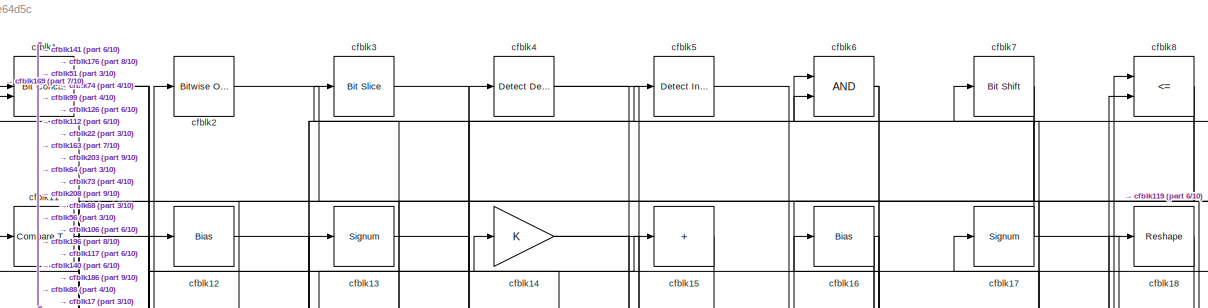
[diagram: root canvas - part 1/10, full width, top band]
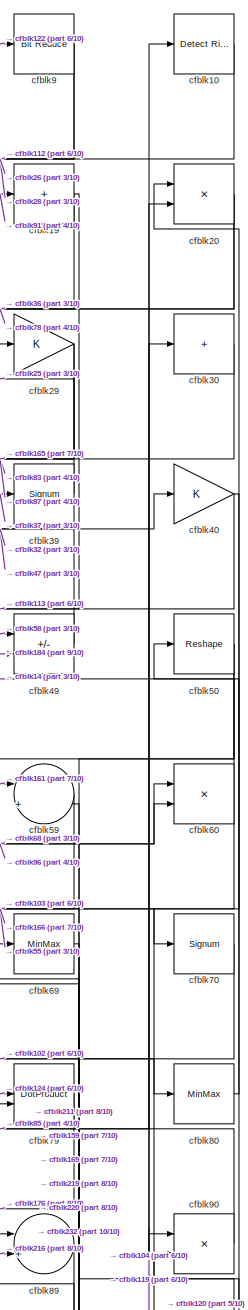
[diagram: root canvas - part 2/10, top right region]
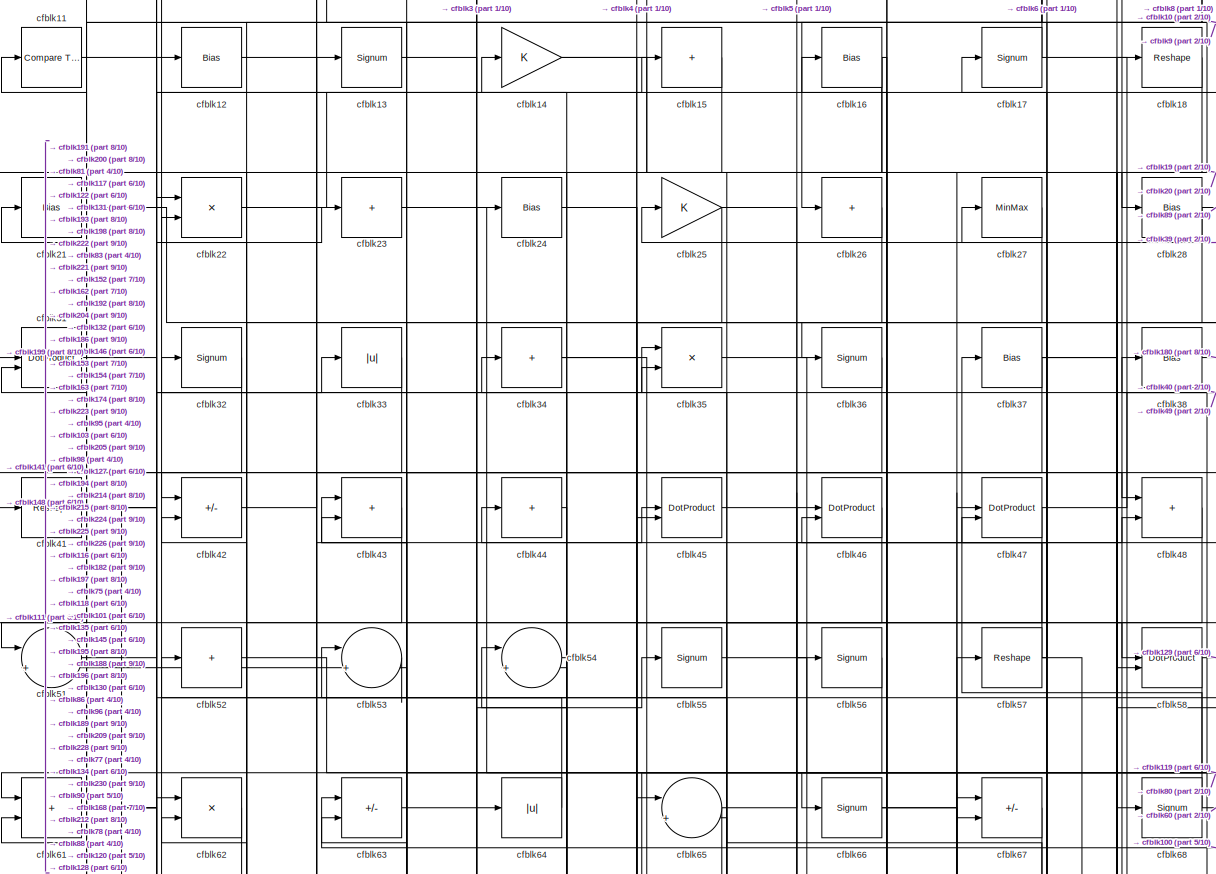
[diagram: root canvas - part 3/10, full width, top band]
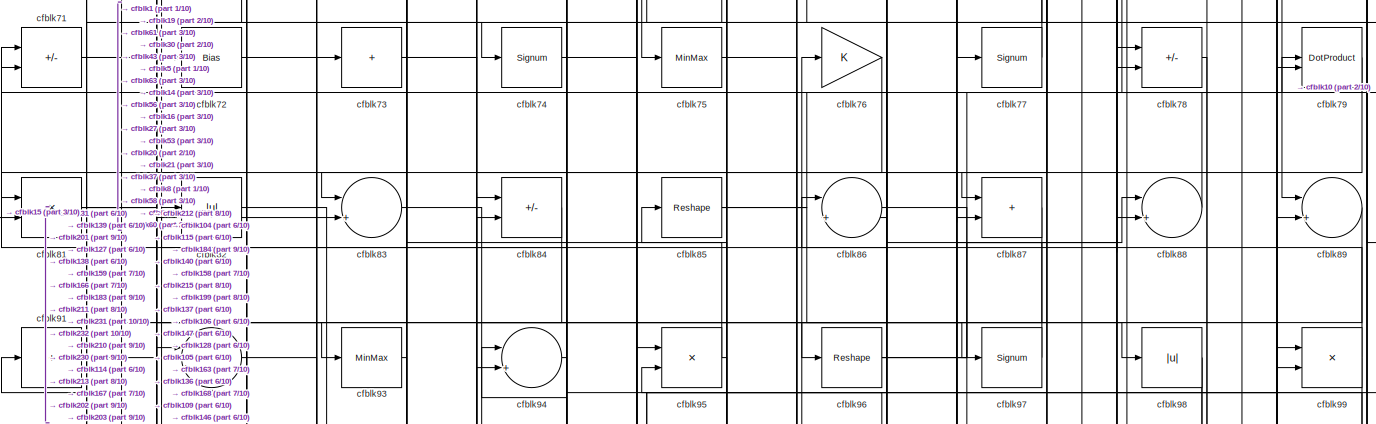
[diagram: root canvas - part 4/10, full width, middle band]
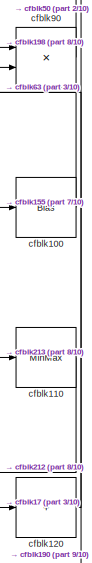
[diagram: root canvas - part 5/10, middle right region]
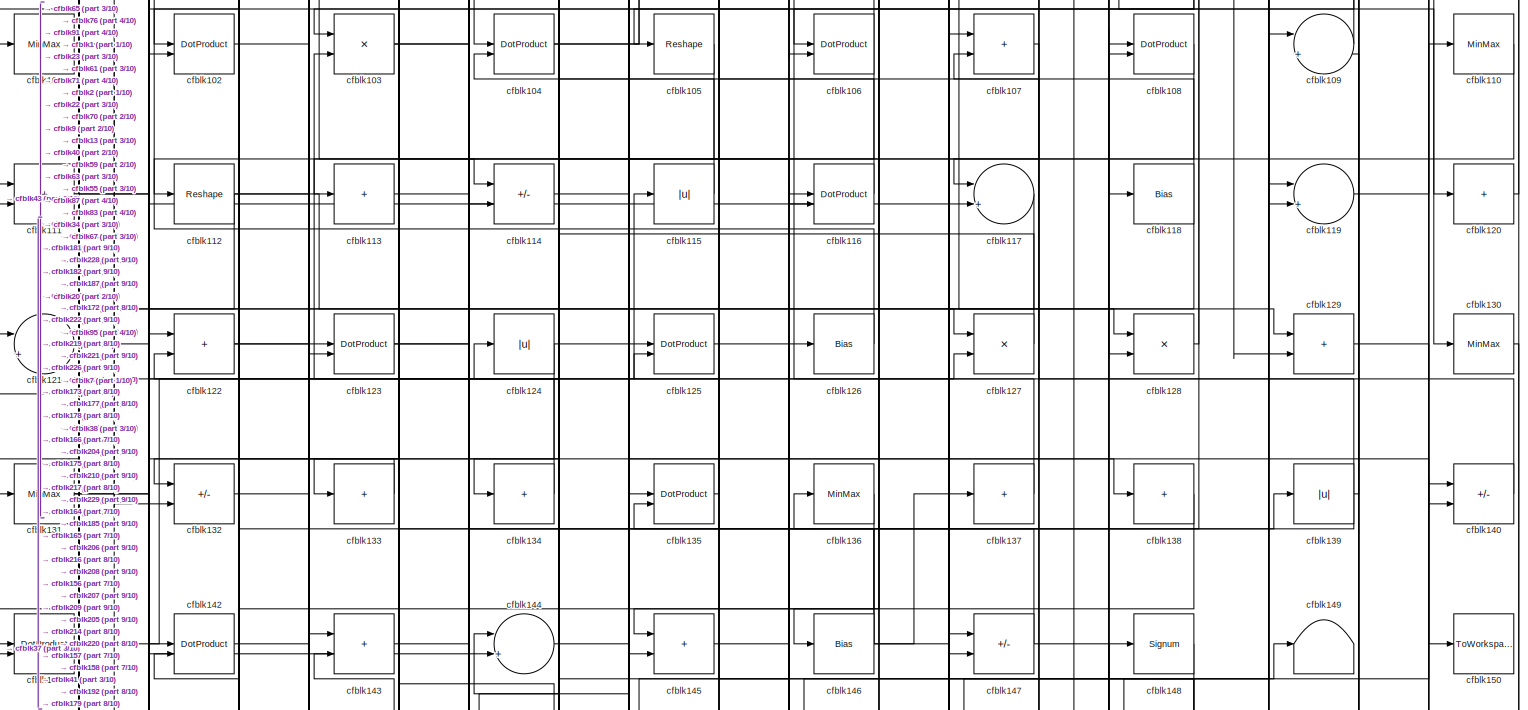
[diagram: root canvas - part 6/10, full width, middle band]
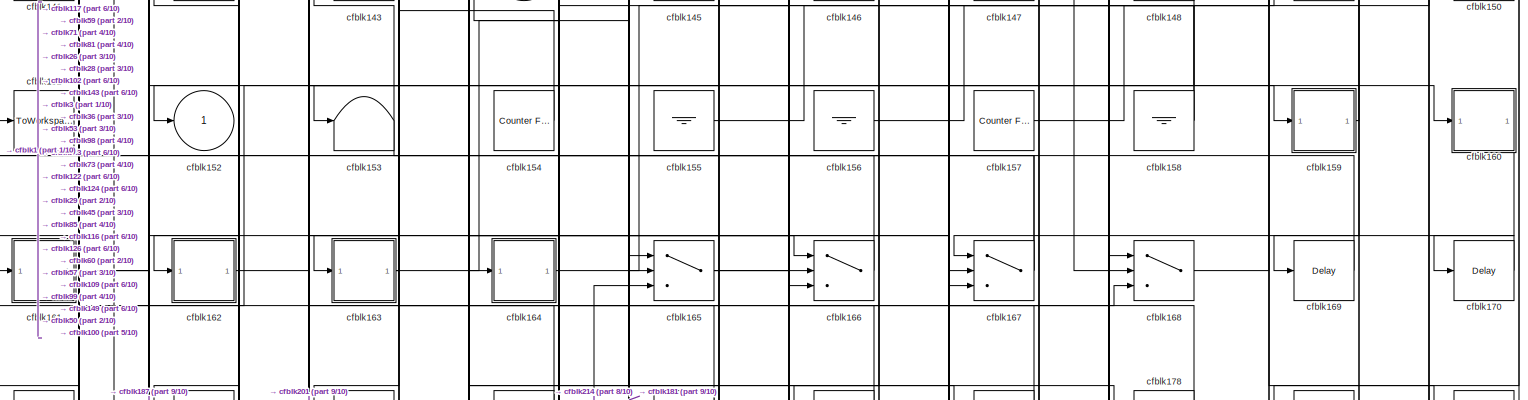
[diagram: root canvas - part 7/10, full width, bottom band]
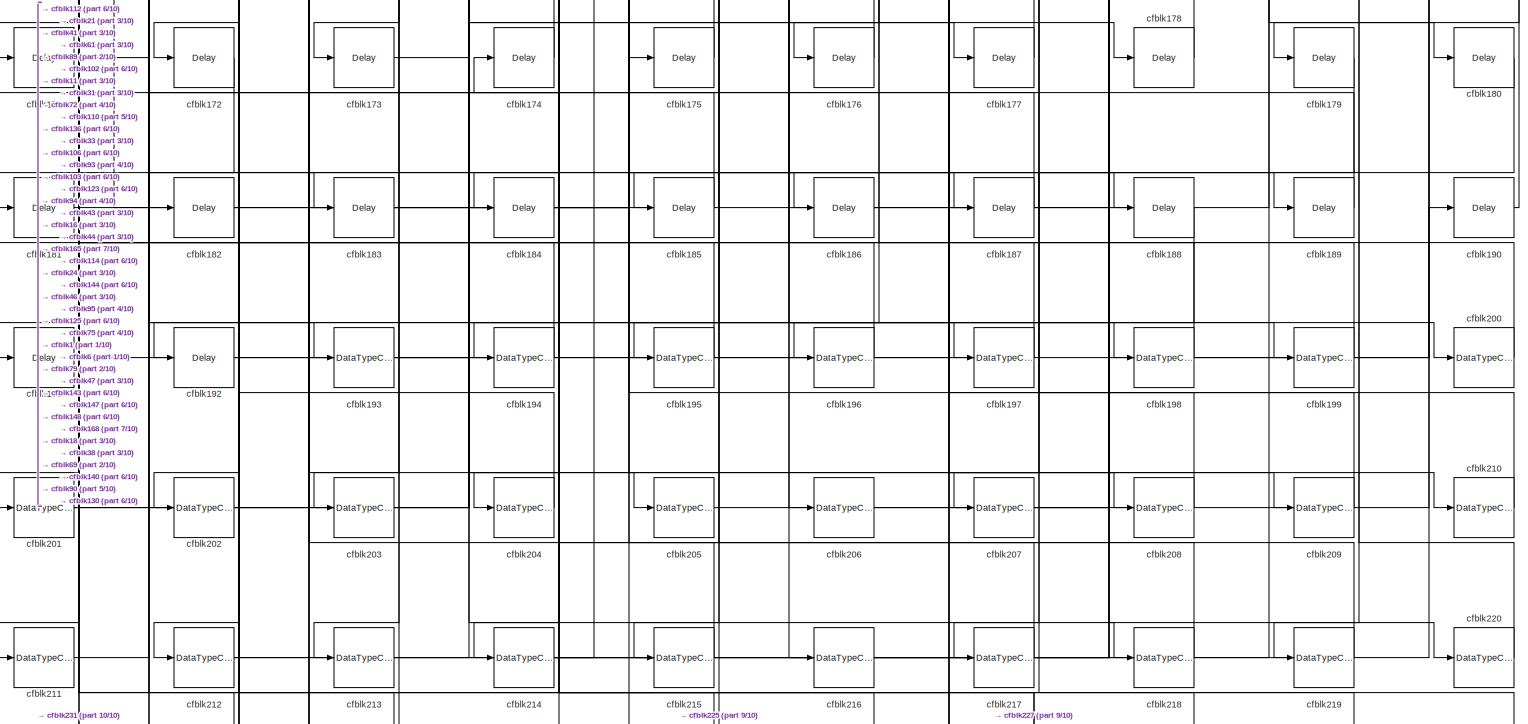
[diagram: root canvas - part 8/10, full width, bottom band]
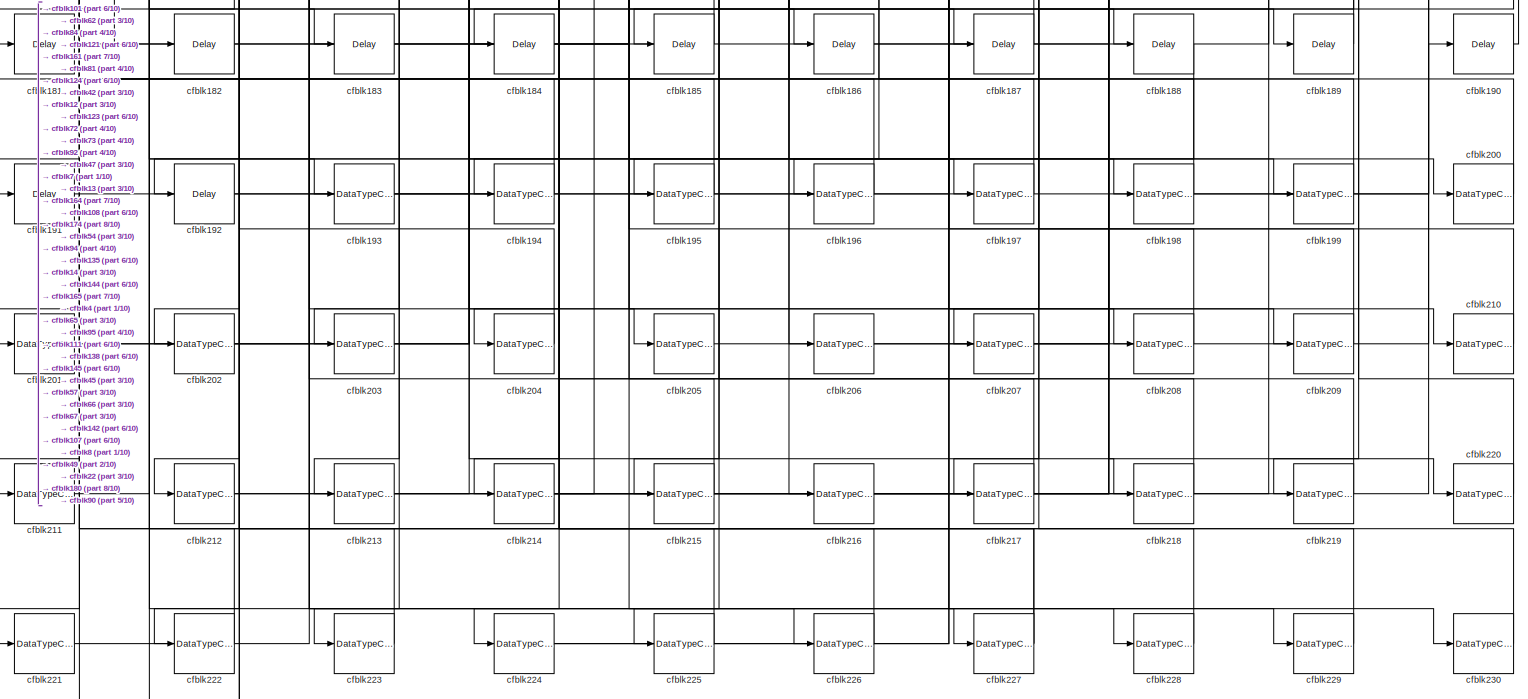
[diagram: root canvas - part 9/10, full width, bottom band]
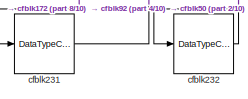
[diagram: root canvas - part 10/10, bottom left region]
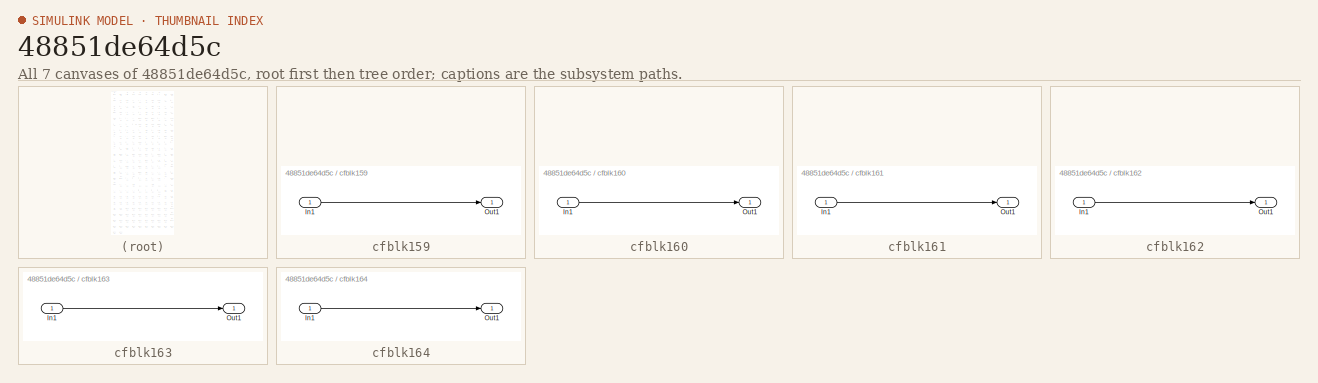
[diagram: thumbnail index - all 7 canvases of the model, root first then tree order]
MODEL slx_48851de64d5c
KIND model
CONFIG AbsTol = auto
CONFIG EnableMultiTasking = off
CONFIG FixedStep = auto
CONFIG MaxStep = auto
CONFIG MinStep = auto
CONFIG RelTol = 1e-3
CONFIG SampleTimeConstraint = Unconstrained
CONFIG SolverName = VariableStepAuto
CONFIG StartTime = 0.0
CONFIG StopTime = 10.0
BLOCK [Reference] cfblk1  REF=hdlsllib/Logic and Bit
Operations/Bit Concat
  SourceBlock = hdlsllib/Logic and Bit\nOperations/Bit Concat
  SourceType = Bit Concat
BLOCK [Reference] cfblk10  REF=hdlsllib/Logic and Bit
Operations/Detect Rise
Positive
  SourceBlock = hdlsllib/Logic and Bit\nOperations/Detect Rise\nPositive
  SourceType = Detect Rise Positive
BLOCK [Bias] cfblk100
  Bias = 0.0
  SaturateOnIntegerOverflow = off
BLOCK [MinMax] cfblk101
BLOCK [DotProduct] cfblk102
  OutDataTypeStr = Inherit: Inherit via internal rule
BLOCK [Product] cfblk103
  Inputs = */
  RndMeth = Zero
  SaturateOnIntegerOverflow = on
BLOCK [DotProduct] cfblk104
  OutDataTypeStr = Inherit: Inherit via internal rule
BLOCK [Reshape] cfblk105
BLOCK [DotProduct] cfblk106
  OutDataTypeStr = Inherit: Inherit via internal rule
BLOCK [Sum] cfblk107
  IconShape = rectangular
BLOCK [DotProduct] cfblk108
  OutDataTypeStr = Inherit: Inherit via internal rule
BLOCK [Sum] cfblk109
  Inputs = |++
BLOCK [Reference] cfblk11  REF=hdlsllib/Logic and Bit
Operations/Compare
To Constant
  SourceBlock = hdlsllib/Logic and Bit\nOperations/Compare\nTo Constant
  SourceType = Compare To Constant
BLOCK [MinMax] cfblk110
BLOCK [Sum] cfblk111
  IconShape = rectangular
BLOCK [Reshape] cfblk112
BLOCK [Sum] cfblk113
  IconShape = rectangular
  Inputs = +
BLOCK [Sum] cfblk114
  IconShape = rectangular
  Inputs = +-
BLOCK [Abs] cfblk115
  SaturateOnIntegerOverflow = off
BLOCK [DotProduct] cfblk116
  OutDataTypeStr = Inherit: Inherit via internal rule
BLOCK [Sum] cfblk117
  Inputs = |++
BLOCK [Bias] cfblk118
  Bias = 0.0
  SaturateOnIntegerOverflow = off
BLOCK [Sum] cfblk119
  Inputs = |++
BLOCK [Bias] cfblk12
  Bias = 0.0
  SaturateOnIntegerOverflow = off
BLOCK [Sum] cfblk120
  IconShape = rectangular
  Inputs = +
BLOCK [Sum] cfblk121
  Inputs = |++
BLOCK [Sum] cfblk122
  IconShape = rectangular
BLOCK [DotProduct] cfblk123
  OutDataTypeStr = Inherit: Inherit via internal rule
BLOCK [Abs] cfblk124
  SaturateOnIntegerOverflow = off
BLOCK [DotProduct] cfblk125
  OutDataTypeStr = Inherit: Inherit via internal rule
BLOCK [Bias] cfblk126
  Bias = 0.0
  SaturateOnIntegerOverflow = off
BLOCK [Product] cfblk127
  Inputs = */
  RndMeth = Zero
  SaturateOnIntegerOverflow = on
BLOCK [Product] cfblk128
  Inputs = */
  RndMeth = Zero
  SaturateOnIntegerOverflow = on
BLOCK [Sum] cfblk129
  IconShape = rectangular
BLOCK [Signum] cfblk13
BLOCK [MinMax] cfblk130
BLOCK [MinMax] cfblk131
BLOCK [Sum] cfblk132
  IconShape = rectangular
  Inputs = +-
BLOCK [Sum] cfblk133
  IconShape = rectangular
  Inputs = +
BLOCK [Sum] cfblk134
  IconShape = rectangular
  Inputs = +
BLOCK [DotProduct] cfblk135
  OutDataTypeStr = Inherit: Inherit via internal rule
BLOCK [MinMax] cfblk136
BLOCK [Sum] cfblk137
  IconShape = rectangular
  Inputs = +
BLOCK [Sum] cfblk138
  IconShape = rectangular
  Inputs = +
BLOCK [Abs] cfblk139
  SaturateOnIntegerOverflow = off
BLOCK [Gain] cfblk14
BLOCK [Sum] cfblk140
  IconShape = rectangular
  Inputs = +-
BLOCK [DotProduct] cfblk141
  OutDataTypeStr = Inherit: Inherit via internal rule
BLOCK [DotProduct] cfblk142
  OutDataTypeStr = Inherit: Inherit via internal rule
BLOCK [Sum] cfblk143
  IconShape = rectangular
BLOCK [Sum] cfblk144
  Inputs = |++
BLOCK [Sum] cfblk145
  IconShape = rectangular
BLOCK [Bias] cfblk146
  Bias = 0.0
  SaturateOnIntegerOverflow = off
BLOCK [Sum] cfblk147
  IconShape = rectangular
  Inputs = +-
BLOCK [Signum] cfblk148
BLOCK [Terminator] cfblk149
BLOCK [Sum] cfblk15
  IconShape = rectangular
  Inputs = +
BLOCK [ToWorkspace] cfblk150
  MaxDataPoints = inf
  SampleTime = -1
  SaveFormat = Timeseries
  VariableName = simout
BLOCK [ToWorkspace] cfblk151
  MaxDataPoints = inf
  SampleTime = -1
  SaveFormat = Timeseries
  VariableName = simout
BLOCK [Outport] cfblk152
  VectorParamsAs1DForOutWhenUnconnected = off
BLOCK [Terminator] cfblk153
BLOCK [Reference] cfblk154  REF=hdlsllib/Sources/Counter
Free-Running
  SourceBlock = hdlsllib/Sources/Counter\nFree-Running
  SourceType = Counter Free-Running
BLOCK [Ground] cfblk155
BLOCK [Ground] cfblk156
BLOCK [Reference] cfblk157  REF=hdlsllib/Sources/Counter
Free-Running
  SourceBlock = hdlsllib/Sources/Counter\nFree-Running
  SourceType = Counter Free-Running
BLOCK [Ground] cfblk158
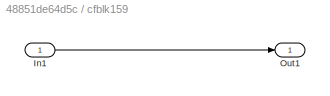
BLOCK [SubSystem] cfblk159
  LibrarySourceBlock = hdlsllib/Ports &\nSubsystems/Subsystem
BLOCK [Inport] cfblk159/In1
BLOCK [Outport] cfblk159/Out1
BLOCK [Bias] cfblk16
  Bias = 0.0
  SaturateOnIntegerOverflow = off
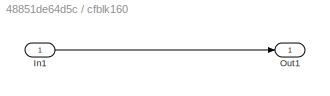
BLOCK [SubSystem] cfblk160
  LibrarySourceBlock = hdlsllib/Ports &\nSubsystems/Subsystem
BLOCK [Inport] cfblk160/In1
BLOCK [Outport] cfblk160/Out1
BLOCK [SubSystem] cfblk161
  LibrarySourceBlock = hdlsllib/Ports &\nSubsystems/Subsystem
BLOCK [Inport] cfblk161/In1
BLOCK [Outport] cfblk161/Out1
BLOCK [SubSystem] cfblk162
  LibrarySourceBlock = hdlsllib/Ports &\nSubsystems/Subsystem
BLOCK [Inport] cfblk162/In1
BLOCK [Outport] cfblk162/Out1
BLOCK [SubSystem] cfblk163
  LibrarySourceBlock = hdlsllib/Ports &\nSubsystems/Subsystem
BLOCK [Inport] cfblk163/In1
BLOCK [Outport] cfblk163/Out1
BLOCK [SubSystem] cfblk164
  LibrarySourceBlock = hdlsllib/Ports &\nSubsystems/Subsystem
BLOCK [Inport] cfblk164/In1
BLOCK [Outport] cfblk164/Out1
BLOCK [Switch] cfblk165
  InputSameDT = off
  SaturateOnIntegerOverflow = off
BLOCK [Switch] cfblk166
  InputSameDT = off
  SaturateOnIntegerOverflow = off
BLOCK [Switch] cfblk167
  InputSameDT = off
  SaturateOnIntegerOverflow = off
BLOCK [Switch] cfblk168
  InputSameDT = off
  SaturateOnIntegerOverflow = off
BLOCK [Delay] cfblk169
  InputPortMap = u0
  SampleTime = 1
BLOCK [Signum] cfblk17
BLOCK [Delay] cfblk170
  InputPortMap = u0
  SampleTime = 1
BLOCK [Delay] cfblk171
  InputPortMap = u0
  SampleTime = 1
BLOCK [Delay] cfblk172
  InputPortMap = u0
  SampleTime = 1
BLOCK [Delay] cfblk173
  InputPortMap = u0
  SampleTime = 1
BLOCK [Delay] cfblk174
  InputPortMap = u0
  SampleTime = 1
BLOCK [Delay] cfblk175
  InputPortMap = u0
  SampleTime = 1
BLOCK [Delay] cfblk176
  InputPortMap = u0
  SampleTime = 1
BLOCK [Delay] cfblk177
  InputPortMap = u0
  SampleTime = 1
BLOCK [Delay] cfblk178
  InputPortMap = u0
  SampleTime = 1
BLOCK [Delay] cfblk179
  InputPortMap = u0
  SampleTime = 1
BLOCK [Reshape] cfblk18
BLOCK [Delay] cfblk180
  InputPortMap = u0
  SampleTime = 1
BLOCK [Delay] cfblk181
  InputPortMap = u0
  SampleTime = 1
BLOCK [Delay] cfblk182
  InputPortMap = u0
  SampleTime = 1
BLOCK [Delay] cfblk183
  InputPortMap = u0
  SampleTime = 1
BLOCK [Delay] cfblk184
  InputPortMap = u0
  SampleTime = 1
BLOCK [Delay] cfblk185
  InputPortMap = u0
  SampleTime = 1
BLOCK [Delay] cfblk186
  InputPortMap = u0
  SampleTime = 1
BLOCK [Delay] cfblk187
  InputPortMap = u0
  SampleTime = 1
BLOCK [Delay] cfblk188
  InputPortMap = u0
  SampleTime = 1
BLOCK [Delay] cfblk189
  InputPortMap = u0
  SampleTime = 1
BLOCK [Sum] cfblk19
  IconShape = rectangular
  Inputs = +
BLOCK [Delay] cfblk190
  InputPortMap = u0
  SampleTime = 1
BLOCK [Delay] cfblk191
  InputPortMap = u0
  SampleTime = 1
BLOCK [Delay] cfblk192
  InputPortMap = u0
  SampleTime = 1
BLOCK [DataTypeConversion] cfblk193
  OutDataTypeStr = uint8
  RndMeth = Floor
  SaturateOnIntegerOverflow = off
BLOCK [DataTypeConversion] cfblk194
  OutDataTypeStr = uint8
  RndMeth = Floor
  SaturateOnIntegerOverflow = off
BLOCK [DataTypeConversion] cfblk195
  OutDataTypeStr = uint8
  RndMeth = Floor
  SaturateOnIntegerOverflow = off
BLOCK [DataTypeConversion] cfblk196
  OutDataTypeStr = uint8
  RndMeth = Floor
  SaturateOnIntegerOverflow = off
BLOCK [DataTypeConversion] cfblk197
  OutDataTypeStr = uint8
  RndMeth = Floor
  SaturateOnIntegerOverflow = off
BLOCK [DataTypeConversion] cfblk198
  RndMeth = Floor
  SaturateOnIntegerOverflow = off
BLOCK [DataTypeConversion] cfblk199
  OutDataTypeStr = uint8
  RndMeth = Floor
  SaturateOnIntegerOverflow = off
BLOCK [Reference] cfblk2  REF=simulink/Logic and Bit
Operations/Bitwise
Operator
  LibrarySourceBlock = hdlsllib/Logic and Bit\nOperations/Bitwise\nOperator
  SourceBlock = simulink/Logic and Bit\nOperations/Bitwise\nOperator
  SourceType = Bitwise Operator
BLOCK [Product] cfblk20
  Inputs = */
  RndMeth = Zero
  SaturateOnIntegerOverflow = on
BLOCK [DataTypeConversion] cfblk200
  OutDataTypeStr = uint8
  RndMeth = Floor
  SaturateOnIntegerOverflow = off
BLOCK [DataTypeConversion] cfblk201
  RndMeth = Floor
  SaturateOnIntegerOverflow = off
BLOCK [DataTypeConversion] cfblk202
  OutDataTypeStr = uint8
  RndMeth = Floor
  SaturateOnIntegerOverflow = off
BLOCK [DataTypeConversion] cfblk203
  OutDataTypeStr = uint8
  RndMeth = Floor
  SaturateOnIntegerOverflow = off
BLOCK [DataTypeConversion] cfblk204
  OutDataTypeStr = uint8
  RndMeth = Floor
  SaturateOnIntegerOverflow = off
BLOCK [DataTypeConversion] cfblk205
  OutDataTypeStr = uint8
  RndMeth = Floor
  SaturateOnIntegerOverflow = off
BLOCK [DataTypeConversion] cfblk206
  OutDataTypeStr = uint8
  RndMeth = Floor
  SaturateOnIntegerOverflow = off
BLOCK [DataTypeConversion] cfblk207
  OutDataTypeStr = uint8
  RndMeth = Floor
  SaturateOnIntegerOverflow = off
BLOCK [DataTypeConversion] cfblk208
  OutDataTypeStr = uint8
  RndMeth = Floor
  SaturateOnIntegerOverflow = off
BLOCK [DataTypeConversion] cfblk209
  OutDataTypeStr = uint8
  RndMeth = Floor
  SaturateOnIntegerOverflow = off
BLOCK [Bias] cfblk21
  Bias = 0.0
  SaturateOnIntegerOverflow = off
BLOCK [DataTypeConversion] cfblk210
  OutDataTypeStr = uint8
  RndMeth = Floor
  SaturateOnIntegerOverflow = off
BLOCK [DataTypeConversion] cfblk211
  OutDataTypeStr = uint8
  RndMeth = Floor
  SaturateOnIntegerOverflow = off
BLOCK [DataTypeConversion] cfblk212
  RndMeth = Floor
  SaturateOnIntegerOverflow = off
BLOCK [DataTypeConversion] cfblk213
  OutDataTypeStr = uint8
  RndMeth = Floor
  SaturateOnIntegerOverflow = off
BLOCK [DataTypeConversion] cfblk214
  RndMeth = Floor
  SaturateOnIntegerOverflow = off
BLOCK [DataTypeConversion] cfblk215
  OutDataTypeStr = uint8
  RndMeth = Floor
  SaturateOnIntegerOverflow = off
BLOCK [DataTypeConversion] cfblk216
  OutDataTypeStr = uint8
  RndMeth = Floor
  SaturateOnIntegerOverflow = off
BLOCK [DataTypeConversion] cfblk217
  OutDataTypeStr = uint8
  RndMeth = Floor
  SaturateOnIntegerOverflow = off
BLOCK [DataTypeConversion] cfblk218
  OutDataTypeStr = uint8
  RndMeth = Floor
  SaturateOnIntegerOverflow = off
BLOCK [DataTypeConversion] cfblk219
  OutDataTypeStr = uint8
  RndMeth = Floor
  SaturateOnIntegerOverflow = off
BLOCK [Product] cfblk22
  Inputs = */
  RndMeth = Zero
  SaturateOnIntegerOverflow = on
BLOCK [DataTypeConversion] cfblk220
  OutDataTypeStr = uint8
  RndMeth = Floor
  SaturateOnIntegerOverflow = off
BLOCK [DataTypeConversion] cfblk221
  OutDataTypeStr = uint8
  RndMeth = Floor
  SaturateOnIntegerOverflow = off
BLOCK [DataTypeConversion] cfblk222
  OutDataTypeStr = uint8
  RndMeth = Floor
  SaturateOnIntegerOverflow = off
BLOCK [DataTypeConversion] cfblk223
  OutDataTypeStr = uint8
  RndMeth = Floor
  SaturateOnIntegerOverflow = off
BLOCK [DataTypeConversion] cfblk224
  RndMeth = Floor
  SaturateOnIntegerOverflow = off
BLOCK [DataTypeConversion] cfblk225
  OutDataTypeStr = uint8
  RndMeth = Floor
  SaturateOnIntegerOverflow = off
BLOCK [DataTypeConversion] cfblk226
  OutDataTypeStr = uint8
  RndMeth = Floor
  SaturateOnIntegerOverflow = off
BLOCK [DataTypeConversion] cfblk227
  RndMeth = Floor
  SaturateOnIntegerOverflow = off
BLOCK [DataTypeConversion] cfblk228
  OutDataTypeStr = uint8
  RndMeth = Floor
  SaturateOnIntegerOverflow = off
BLOCK [DataTypeConversion] cfblk229
  OutDataTypeStr = uint8
  RndMeth = Floor
  SaturateOnIntegerOverflow = off
BLOCK [Sum] cfblk23
  IconShape = rectangular
  Inputs = +
BLOCK [DataTypeConversion] cfblk230
  OutDataTypeStr = uint8
  RndMeth = Floor
  SaturateOnIntegerOverflow = off
BLOCK [DataTypeConversion] cfblk231
  OutDataTypeStr = uint8
  RndMeth = Floor
  SaturateOnIntegerOverflow = off
BLOCK [DataTypeConversion] cfblk232
  OutDataTypeStr = uint8
  RndMeth = Floor
  SaturateOnIntegerOverflow = off
BLOCK [Bias] cfblk24
  Bias = 0.0
  SaturateOnIntegerOverflow = off
BLOCK [Gain] cfblk25
BLOCK [Sum] cfblk26
  IconShape = rectangular
  Inputs = +
BLOCK [MinMax] cfblk27
BLOCK [Bias] cfblk28
  Bias = 0.0
  SaturateOnIntegerOverflow = off
BLOCK [Gain] cfblk29
BLOCK [Reference] cfblk3  REF=hdlsllib/Logic and Bit
Operations/Bit Slice
  SourceBlock = hdlsllib/Logic and Bit\nOperations/Bit Slice
  SourceType = Bit Slice
BLOCK [Sum] cfblk30
  IconShape = rectangular
  Inputs = +
BLOCK [DotProduct] cfblk31
  OutDataTypeStr = Inherit: Inherit via internal rule
BLOCK [Signum] cfblk32
BLOCK [Abs] cfblk33
  SaturateOnIntegerOverflow = off
BLOCK [Sum] cfblk34
  IconShape = rectangular
  Inputs = +
BLOCK [Product] cfblk35
  Inputs = */
  RndMeth = Zero
  SaturateOnIntegerOverflow = on
BLOCK [Signum] cfblk36
BLOCK [Bias] cfblk37
  Bias = 0.0
  SaturateOnIntegerOverflow = off
BLOCK [Bias] cfblk38
  Bias = 0.0
  SaturateOnIntegerOverflow = off
BLOCK [Signum] cfblk39
BLOCK [Reference] cfblk4  REF=simulink/Logic and Bit
Operations/Detect
Decrease
  LibrarySourceBlock = hdlsllib/Logic and Bit\nOperations/Detect\nDecrease
  SourceBlock = simulink/Logic and Bit\nOperations/Detect\nDecrease
  SourceType = Detect Decrease
BLOCK [Gain] cfblk40
BLOCK [Reshape] cfblk41
BLOCK [Sum] cfblk42
  IconShape = rectangular
  Inputs = +-
BLOCK [Sum] cfblk43
  IconShape = rectangular
BLOCK [Sum] cfblk44
  IconShape = rectangular
  Inputs = +
BLOCK [DotProduct] cfblk45
  OutDataTypeStr = Inherit: Inherit via internal rule
BLOCK [DotProduct] cfblk46
  OutDataTypeStr = Inherit: Inherit via internal rule
BLOCK [DotProduct] cfblk47
  OutDataTypeStr = Inherit: Inherit via internal rule
BLOCK [Sum] cfblk48
  IconShape = rectangular
BLOCK [Sum] cfblk49
  IconShape = rectangular
  Inputs = +-
BLOCK [Reference] cfblk5  REF=simulink/Logic and Bit
Operations/Detect
Increase
  LibrarySourceBlock = hdlsllib/Logic and Bit\nOperations/Detect\nIncrease
  SourceBlock = simulink/Logic and Bit\nOperations/Detect\nIncrease
  SourceType = Detect Increase
BLOCK [Reshape] cfblk50
BLOCK [Sum] cfblk51
  Inputs = |++
BLOCK [Sum] cfblk52
  IconShape = rectangular
  Inputs = +
BLOCK [Sum] cfblk53
  Inputs = |++
BLOCK [Sum] cfblk54
  Inputs = |++
BLOCK [Signum] cfblk55
BLOCK [Signum] cfblk56
BLOCK [Reshape] cfblk57
BLOCK [DotProduct] cfblk58
  OutDataTypeStr = Inherit: Inherit via internal rule
BLOCK [Sum] cfblk59
  Inputs = |++
BLOCK [Logic] cfblk6
  AllPortsSameDT = off
  OutDataTypeStr = boolean
BLOCK [Product] cfblk60
  Inputs = */
  RndMeth = Zero
  SaturateOnIntegerOverflow = on
BLOCK [Sum] cfblk61
  IconShape = rectangular
BLOCK [Product] cfblk62
  Inputs = */
  RndMeth = Zero
  SaturateOnIntegerOverflow = on
BLOCK [Sum] cfblk63
  IconShape = rectangular
  Inputs = +-
BLOCK [Abs] cfblk64
  SaturateOnIntegerOverflow = off
BLOCK [Sum] cfblk65
  Inputs = |++
BLOCK [Signum] cfblk66
BLOCK [Sum] cfblk67
  IconShape = rectangular
  Inputs = +-
BLOCK [Signum] cfblk68
BLOCK [MinMax] cfblk69
BLOCK [Reference] cfblk7  REF=hdlsllib/Logic and Bit
Operations/Bit Shift
  SourceBlock = hdlsllib/Logic and Bit\nOperations/Bit Shift
  SourceType = Bit Shift
BLOCK [Signum] cfblk70
BLOCK [Sum] cfblk71
  IconShape = rectangular
  Inputs = +-
BLOCK [Bias] cfblk72
  Bias = 0.0
  SaturateOnIntegerOverflow = off
BLOCK [Sum] cfblk73
  IconShape = rectangular
  Inputs = +
BLOCK [Signum] cfblk74
BLOCK [MinMax] cfblk75
BLOCK [Gain] cfblk76
BLOCK [Signum] cfblk77
BLOCK [Sum] cfblk78
  IconShape = rectangular
  Inputs = +-
BLOCK [DotProduct] cfblk79
  OutDataTypeStr = Inherit: Inherit via internal rule
BLOCK [RelationalOperator] cfblk8
  InputSameDT = off
  Operator = <=
  OutDataTypeStr = boolean
BLOCK [MinMax] cfblk80
BLOCK [Product] cfblk81
  Inputs = */
  RndMeth = Zero
  SaturateOnIntegerOverflow = on
BLOCK [Abs] cfblk82
  SaturateOnIntegerOverflow = off
BLOCK [Sum] cfblk83
  Inputs = |++
BLOCK [Sum] cfblk84
  IconShape = rectangular
  Inputs = +-
BLOCK [Reshape] cfblk85
BLOCK [Sum] cfblk86
  Inputs = |++
BLOCK [Sum] cfblk87
  IconShape = rectangular
BLOCK [Sum] cfblk88
  Inputs = |++
BLOCK [Sum] cfblk89
  Inputs = |++
BLOCK [Reference] cfblk9  REF=hdlsllib/Logic and Bit
Operations/Bit Reduce
  SourceBlock = hdlsllib/Logic and Bit\nOperations/Bit Reduce
  SourceType = Bit Reduce
BLOCK [Product] cfblk90
  Inputs = */
  RndMeth = Zero
  SaturateOnIntegerOverflow = on
BLOCK [Sum] cfblk91
  IconShape = rectangular
  Inputs = +
BLOCK [Sum] cfblk92
  Inputs = |++
BLOCK [MinMax] cfblk93
BLOCK [Sum] cfblk94
  Inputs = |++
BLOCK [Product] cfblk95
  Inputs = */
  RndMeth = Zero
  SaturateOnIntegerOverflow = on
BLOCK [Reshape] cfblk96
BLOCK [Signum] cfblk97
BLOCK [Abs] cfblk98
  SaturateOnIntegerOverflow = off
BLOCK [Product] cfblk99
  Inputs = */
  RndMeth = Zero
  SaturateOnIntegerOverflow = on
LINE cfblk100:1 -> cfblk63:1
NET cfblk101:1 -> cfblk181:1, cfblk182:1
LINE cfblk102:1 -> cfblk167:2
NET cfblk103:1 -> cfblk177:1, cfblk55:1
NET cfblk104:1 -> cfblk20:2, cfblk79:2
LINE cfblk105:1 -> cfblk133:1
NET cfblk106:1 -> cfblk173:1, cfblk95:2
LINE cfblk107:1 -> cfblk207:1
LINE cfblk108:1 -> cfblk204:1
LINE cfblk109:1 -> cfblk82:1
LINE cfblk10:1 -> cfblk26:1
LINE cfblk110:1 -> cfblk212:1
NET cfblk111:1 -> cfblk144:2, cfblk23:1
NET cfblk112:1 -> cfblk129:1, cfblk171:1, cfblk6:2
LINE cfblk113:1 -> cfblk166:1
LINE cfblk114:1 -> cfblk175:1
LINE cfblk115:1 -> cfblk94:1
LINE cfblk116:1 -> cfblk104:2
LINE cfblk117:1 -> cfblk161:1
NET cfblk118:1 -> cfblk147:2, cfblk65:2
LINE cfblk119:1 -> cfblk30:1
LINE cfblk11:1 -> cfblk193:1
LINE cfblk120:1 -> cfblk50:1
LINE cfblk121:1 -> cfblk227:1
NET cfblk122:1 -> cfblk160:1, cfblk9:1
NET cfblk123:1 -> cfblk178:1, cfblk218:1
NET cfblk124:1 -> cfblk222:1, cfblk79:1
LINE cfblk125:1 -> cfblk216:1
LINE cfblk126:1 -> cfblk2:1
LINE cfblk127:1 -> cfblk34:1
LINE cfblk128:1 -> cfblk38:1
LINE cfblk129:1 -> cfblk150:1
LINE cfblk12:1 -> cfblk186:1
LINE cfblk130:1 -> cfblk179:1
NET cfblk131:1 -> cfblk127:2, cfblk35:2
LINE cfblk132:1 -> cfblk13:1
LINE cfblk133:1 -> cfblk132:1
LINE cfblk134:1 -> cfblk103:2
LINE cfblk135:1 -> cfblk35:1
LINE cfblk136:1 -> cfblk172:1
LINE cfblk137:1 -> cfblk76:1
LINE cfblk138:1 -> cfblk185:1
NET cfblk139:1 -> cfblk109:2, cfblk135:2, cfblk91:1
LINE cfblk13:1 -> cfblk205:1
LINE cfblk140:1 -> cfblk7:1
LINE cfblk141:1 -> cfblk115:1
LINE cfblk142:1 -> cfblk226:1
LINE cfblk143:1 -> cfblk139:1
LINE cfblk144:1 -> cfblk229:1
LINE cfblk145:1 -> cfblk206:1
NET cfblk146:1 -> cfblk137:1, cfblk22:2, cfblk63:2, cfblk88:1
NET cfblk147:1 -> cfblk220:1, cfblk86:1
LINE cfblk148:1 -> cfblk41:1
NET cfblk14:1 -> cfblk189:1, cfblk77:1
LINE cfblk154:1 -> cfblk53:2
LINE cfblk155:1 -> cfblk100:1
LINE cfblk156:1 -> cfblk149:1
LINE cfblk157:1 -> cfblk109:1
NET cfblk158:1 -> cfblk122:2, cfblk85:1
LINE cfblk159/In1:1 -> cfblk159/Out1:1
LINE cfblk159:1 -> cfblk59:2
LINE cfblk15:1 -> cfblk81:2
LINE cfblk160/In1:1 -> cfblk160/Out1:1
LINE cfblk160:1 -> cfblk170:1
LINE cfblk161/In1:1 -> cfblk161/Out1:1
NET cfblk161:1 -> cfblk187:1, cfblk59:1
LINE cfblk162/In1:1 -> cfblk162/Out1:1
LINE cfblk162:1 -> cfblk45:1
LINE cfblk163/In1:1 -> cfblk163/Out1:1
NET cfblk163:1 -> cfblk3:1, cfblk45:2
LINE cfblk164/In1:1 -> cfblk164/Out1:1
LINE cfblk164:1 -> cfblk116:1
NET cfblk165:1 -> cfblk126:1, cfblk168:3
LINE cfblk166:1 -> cfblk124:1
NET cfblk167:1 -> cfblk143:2, cfblk151:1
LINE cfblk168:1 -> cfblk99:1
LINE cfblk169:1 -> cfblk1:1
NET cfblk16:1 -> cfblk145:1, cfblk194:1, cfblk86:2
LINE cfblk170:1 -> cfblk167:1
LINE cfblk171:1 -> cfblk102:2
LINE cfblk172:1 -> cfblk231:1
LINE cfblk173:1 -> cfblk200:1
LINE cfblk174:1 -> cfblk43:2
LINE cfblk175:1 -> cfblk144:1
LINE cfblk176:1 -> cfblk1:2
LINE cfblk177:1 -> cfblk143:1
LINE cfblk178:1 -> cfblk147:1
LINE cfblk179:1 -> cfblk217:1
NET cfblk17:1 -> cfblk120:1, cfblk6:1
LINE cfblk180:1 -> cfblk225:1
LINE cfblk181:1 -> cfblk165:1
LINE cfblk182:1 -> cfblk65:1
LINE cfblk183:1 -> cfblk95:1
LINE cfblk184:1 -> cfblk49:2
LINE cfblk185:1 -> cfblk111:1
LINE cfblk186:1 -> cfblk8:2
LINE cfblk187:1 -> cfblk142:1
LINE cfblk188:1 -> cfblk202:1
LINE cfblk189:1 -> cfblk22:1
LINE cfblk18:1 -> cfblk42:1
LINE cfblk190:1 -> cfblk90:2
LINE cfblk191:1 -> cfblk47:1
LINE cfblk192:1 -> cfblk140:1
LINE cfblk193:1 -> cfblk24:1
LINE cfblk194:1 -> cfblk11:1
LINE cfblk195:1 -> cfblk21:1
LINE cfblk196:1 -> cfblk46:1
LINE cfblk197:1 -> cfblk46:2
NET cfblk198:1 -> cfblk61:2, cfblk90:1
LINE cfblk199:1 -> cfblk31:1
NET cfblk19:1 -> cfblk49:1, cfblk58:2
NET cfblk1:1 -> cfblk106:2, cfblk74:1, cfblk99:2
LINE cfblk200:1 -> cfblk31:2
NET cfblk201:1 -> cfblk164:1, cfblk73:1
LINE cfblk202:1 -> cfblk84:1
LINE cfblk203:1 -> cfblk84:2
LINE cfblk204:1 -> cfblk42:2
LINE cfblk205:1 -> cfblk108:1
LINE cfblk206:1 -> cfblk108:2
LINE cfblk207:1 -> cfblk190:1
LINE cfblk208:1 -> cfblk107:1
LINE cfblk209:1 -> cfblk107:2
NET cfblk20:1 -> cfblk36:1, cfblk78:2
LINE cfblk210:1 -> cfblk135:1
LINE cfblk211:1 -> cfblk72:1
NET cfblk212:1 -> cfblk18:1, cfblk94:2
LINE cfblk213:1 -> cfblk110:1
NET cfblk214:1 -> cfblk148:1, cfblk165:3, cfblk168:1
LINE cfblk215:1 -> cfblk44:1
LINE cfblk216:1 -> cfblk89:2
LINE cfblk217:1 -> cfblk125:1
LINE cfblk218:1 -> cfblk125:2
LINE cfblk219:1 -> cfblk123:1
LINE cfblk21:1 -> cfblk78:1
LINE cfblk220:1 -> cfblk69:1
LINE cfblk221:1 -> cfblk123:2
LINE cfblk222:1 -> cfblk62:1
LINE cfblk223:1 -> cfblk62:2
NET cfblk224:1 -> cfblk57:1, cfblk67:1
LINE cfblk225:1 -> cfblk54:1
LINE cfblk226:1 -> cfblk54:2
NET cfblk227:1 -> cfblk142:2, cfblk174:1
LINE cfblk228:1 -> cfblk121:1
LINE cfblk229:1 -> cfblk121:2
LINE cfblk22:1 -> cfblk4:1
LINE cfblk230:1 -> cfblk47:2
LINE cfblk231:1 -> cfblk92:1
LINE cfblk232:1 -> cfblk92:2
LINE cfblk23:1 -> cfblk66:1
NET cfblk24:1 -> cfblk116:2, cfblk197:1
NET cfblk25:1 -> cfblk145:2, cfblk67:2
LINE cfblk26:1 -> cfblk162:1
LINE cfblk27:1 -> cfblk96:1
NET cfblk28:1 -> cfblk152:1, cfblk89:1
NET cfblk29:1 -> cfblk165:2, cfblk87:1
LINE cfblk2:1 -> cfblk119:2
LINE cfblk30:1 -> cfblk83:1
LINE cfblk31:1 -> cfblk198:1
LINE cfblk32:1 -> cfblk61:1
LINE cfblk33:1 -> cfblk192:1
NET cfblk34:1 -> cfblk118:1, cfblk58:1
LINE cfblk35:1 -> cfblk130:1
LINE cfblk36:1 -> cfblk153:1
NET cfblk37:1 -> cfblk141:2, cfblk39:1, cfblk88:2
LINE cfblk38:1 -> cfblk180:1
LINE cfblk39:1 -> cfblk25:1
LINE cfblk3:1 -> cfblk64:1
NET cfblk40:1 -> cfblk113:1, cfblk70:1
NET cfblk41:1 -> cfblk117:2, cfblk132:2, cfblk15:1, cfblk191:1
LINE cfblk42:1 -> cfblk48:1
LINE cfblk43:1 -> cfblk111:2
LINE cfblk44:1 -> cfblk214:1
LINE cfblk45:1 -> cfblk188:1
LINE cfblk46:1 -> cfblk195:1
NET cfblk47:1 -> cfblk223:1, cfblk40:1
LINE cfblk48:1 -> cfblk128:2
LINE cfblk49:1 -> cfblk32:1
NET cfblk4:1 -> cfblk208:1, cfblk68:1
NET cfblk50:1 -> cfblk169:1, cfblk232:1
LINE cfblk51:1 -> cfblk12:1
LINE cfblk52:1 -> cfblk119:1
LINE cfblk53:1 -> cfblk51:2
LINE cfblk54:1 -> cfblk224:1
LINE cfblk55:1 -> cfblk80:1
LINE cfblk56:1 -> cfblk75:1
NET cfblk57:1 -> cfblk168:2, cfblk16:1, cfblk27:1
NET cfblk58:1 -> cfblk129:2, cfblk81:1
LINE cfblk59:1 -> cfblk103:1
LINE cfblk5:1 -> cfblk56:1
NET cfblk60:1 -> cfblk14:1, cfblk166:3
NET cfblk61:1 -> cfblk122:1, cfblk33:1, cfblk83:2
LINE cfblk62:1 -> cfblk221:1
LINE cfblk63:1 -> cfblk98:1
LINE cfblk64:1 -> cfblk52:1
NET cfblk65:1 -> cfblk101:1, cfblk48:2
NET cfblk66:1 -> cfblk209:1, cfblk228:1
LINE cfblk67:1 -> cfblk134:1
NET cfblk68:1 -> cfblk37:1, cfblk60:1
LINE cfblk69:1 -> cfblk219:1
NET cfblk6:1 -> cfblk106:1, cfblk196:1
LINE cfblk70:1 -> cfblk102:1
NET cfblk71:1 -> cfblk127:1, cfblk138:1, cfblk159:1
LINE cfblk72:1 -> cfblk210:1
NET cfblk73:1 -> cfblk167:3, cfblk5:1, cfblk87:2
LINE cfblk74:1 -> cfblk140:2
LINE cfblk75:1 -> cfblk199:1
LINE cfblk76:1 -> cfblk131:1
LINE cfblk77:1 -> cfblk53:1
LINE cfblk78:1 -> cfblk136:1
LINE cfblk79:1 -> cfblk176:1
NET cfblk7:1 -> cfblk141:1, cfblk203:1
LINE cfblk80:1 -> cfblk20:1
NET cfblk81:1 -> cfblk166:2, cfblk183:1, cfblk93:1
LINE cfblk82:1 -> cfblk114:1
LINE cfblk83:1 -> cfblk104:1
LINE cfblk84:1 -> cfblk201:1
NET cfblk85:1 -> cfblk10:1, cfblk97:1
LINE cfblk86:1 -> cfblk128:1
LINE cfblk87:1 -> cfblk114:2
LINE cfblk88:1 -> cfblk8:1
LINE cfblk89:1 -> cfblk211:1
NET cfblk8:1 -> cfblk117:1, cfblk51:1
LINE cfblk90:1 -> cfblk17:1
LINE cfblk91:1 -> cfblk19:1
LINE cfblk92:1 -> cfblk230:1
LINE cfblk93:1 -> cfblk213:1
LINE cfblk94:1 -> cfblk184:1
NET cfblk95:1 -> cfblk215:1, cfblk43:1
NET cfblk96:1 -> cfblk29:1, cfblk60:2
LINE cfblk97:1 -> cfblk71:2
NET cfblk98:1 -> cfblk105:1, cfblk163:1
NET cfblk99:1 -> cfblk146:1, cfblk71:1
NET cfblk9:1 -> cfblk112:1, cfblk28:1
note: NET lines group one-source signal fan-out (src -> all destinations, sorted); 1:1 wires keep LINE
